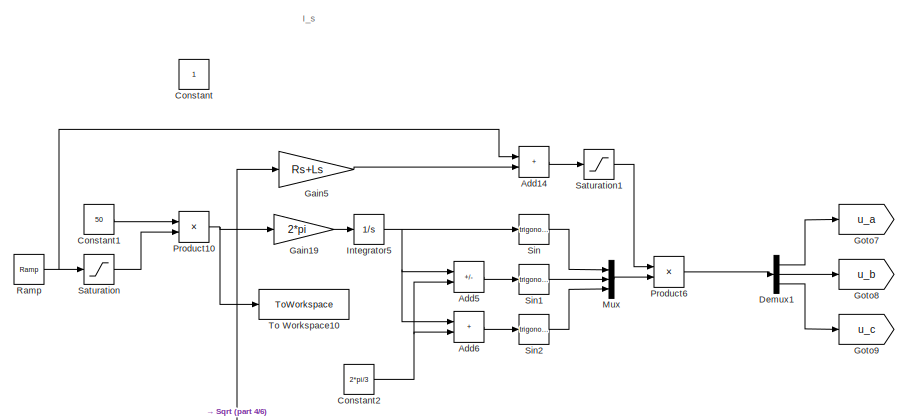
[diagram: root canvas - part 1/6, top left region]
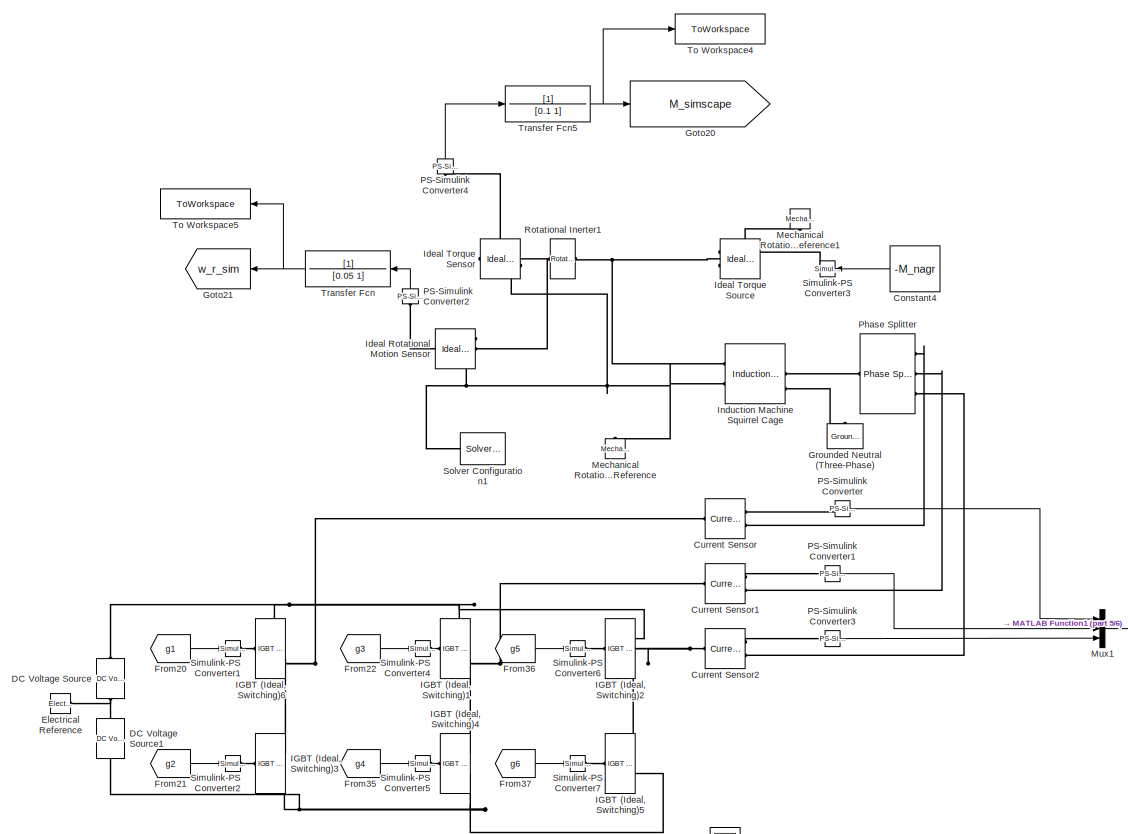
[diagram: root canvas - part 2/6, central region]
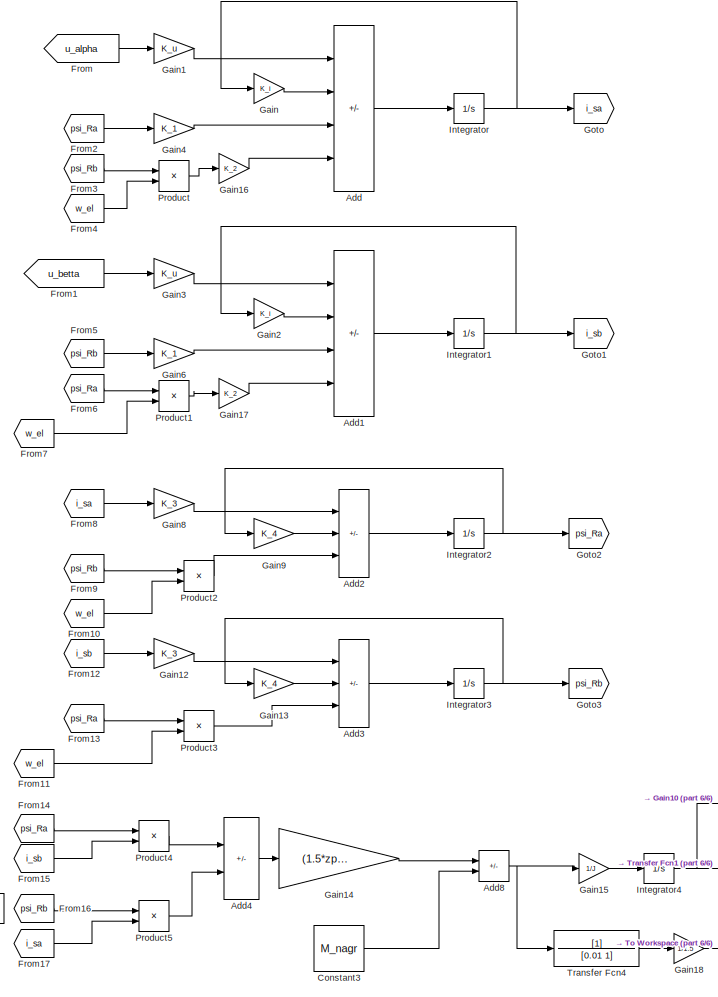
[diagram: root canvas - part 3/6, central region]
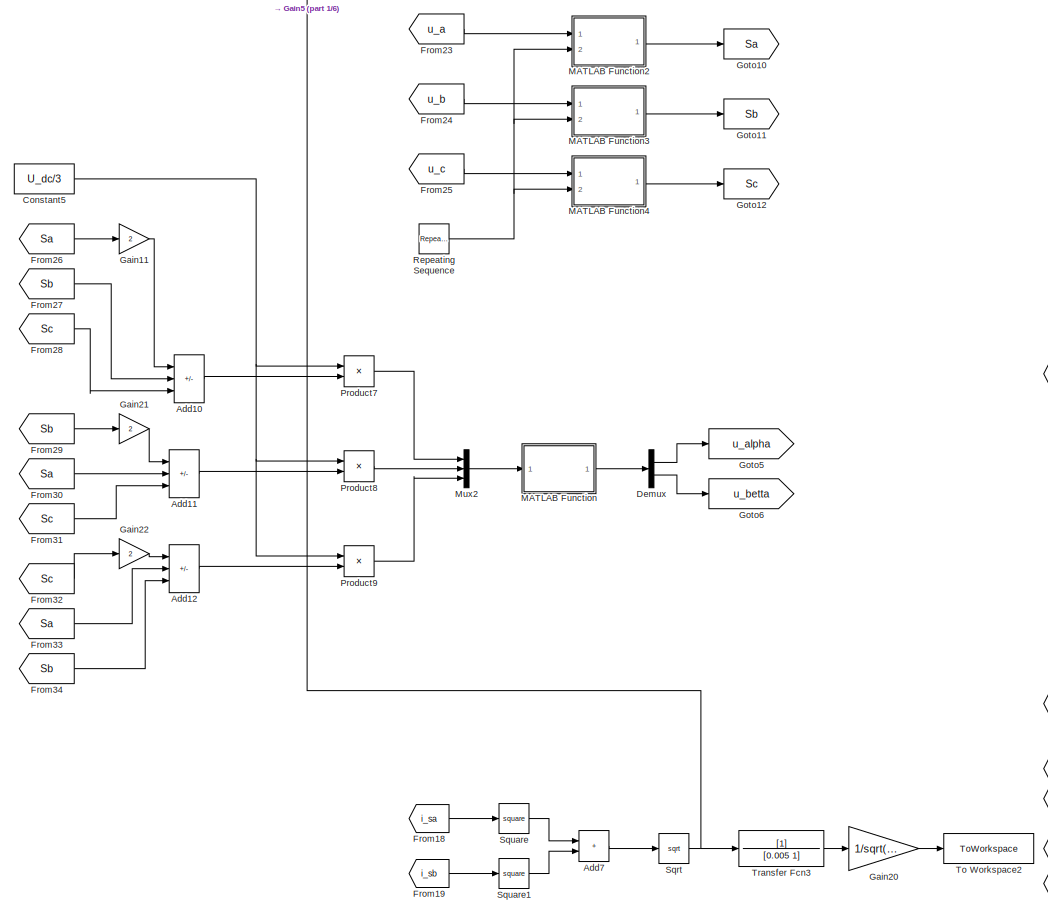
[diagram: root canvas - part 4/6, middle left region]
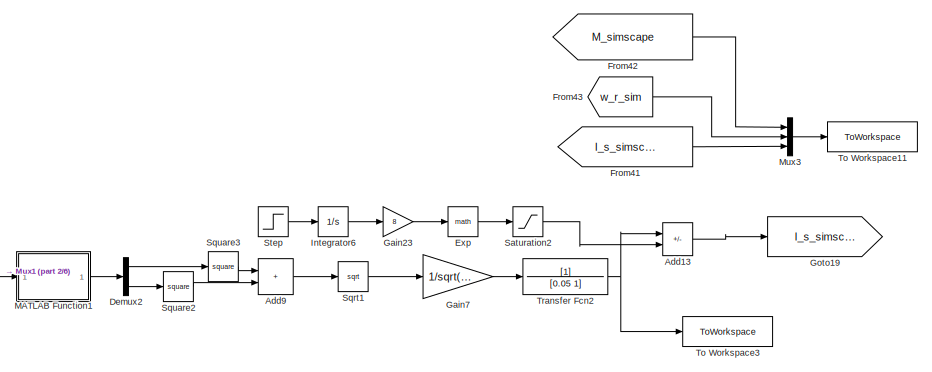
[diagram: root canvas - part 5/6, middle right region]
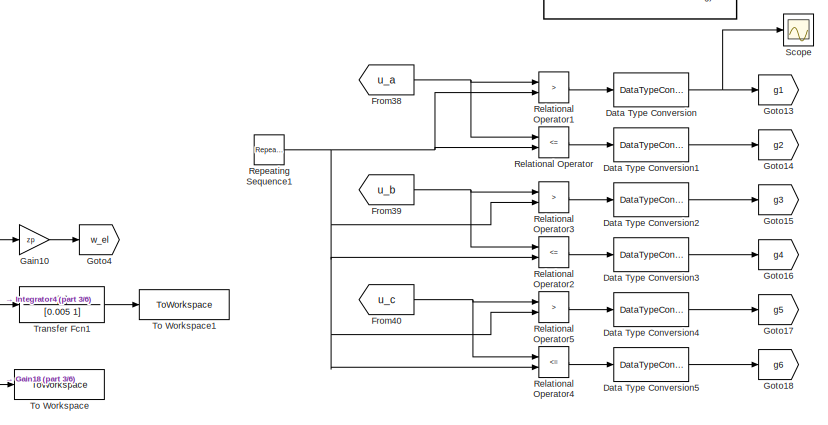
[diagram: root canvas - part 6/6, bottom center region]
MODEL slx_23dcf871ef6f
KIND model
CONFIG AbsTol = auto
CONFIG EnableMultiTasking = off
CONFIG FixedStep = auto
CONFIG MaxStep = auto
CONFIG MinStep = auto
CONFIG RelTol = 1e-3
CONFIG SampleTimeConstraint = Unconstrained
CONFIG SolverName = VariableStepAuto
CONFIG StartTime = 0.0
CONFIG StopTime = 10.0
BLOCK [Sum] Add
  IconShape = rectangular
  Inputs = +-++
  Ports = [4, 1]
BLOCK [Sum] Add1
  IconShape = rectangular
  Inputs = +-+-
  Ports = [4, 1]
BLOCK [Sum] Add10
  IconShape = rectangular
  Inputs = +--
  Ports = [3, 1]
BLOCK [Sum] Add11
  IconShape = rectangular
  Inputs = +--
  Ports = [3, 1]
BLOCK [Sum] Add12
  IconShape = rectangular
  Inputs = +--
  Ports = [3, 1]
BLOCK [Sum] Add13
  IconShape = rectangular
  Inputs = +-
  Ports = [2, 1]
BLOCK [Sum] Add14
  IconShape = rectangular
  Ports = [2, 1]
BLOCK [Sum] Add2
  IconShape = rectangular
  Inputs = +--
  Ports = [3, 1]
BLOCK [Sum] Add3
  IconShape = rectangular
  Inputs = +-+
  Ports = [3, 1]
BLOCK [Sum] Add4
  IconShape = rectangular
  Inputs = +-
  Ports = [2, 1]
BLOCK [Sum] Add5
  IconShape = rectangular
  Inputs = +-
  Ports = [2, 1]
BLOCK [Sum] Add6
  IconShape = rectangular
  Ports = [2, 1]
BLOCK [Sum] Add7
  IconShape = rectangular
  Ports = [2, 1]
BLOCK [Sum] Add8
  IconShape = rectangular
  Inputs = +-
  Ports = [2, 1]
BLOCK [Sum] Add9
  IconShape = rectangular
  Ports = [2, 1]
BLOCK [Constant] Constant
BLOCK [Constant] Constant1
  Value = 50
BLOCK [Constant] Constant2
  Value = 2*pi/3
BLOCK [Constant] Constant3
  Value = M_nagr
BLOCK [Constant] Constant4
  NameLocation = top
  Value = -M_nagr
BLOCK [Constant] Constant5
  Value = U_dc/3
BLOCK [Reference] Current Sensor  REF=fl_lib/Electrical/Electrical Sensors/Current Sensor
  Ports = [0, 0, 0, 0, 0, 1, 2]
  SourceBlock = fl_lib/Electrical/Electrical Sensors/Current Sensor
  SourceProductBaseCode = PW,SS,VE
  SourceType = Current Sensor
BLOCK [Reference] Current Sensor1  REF=fl_lib/Electrical/Electrical Sensors/Current Sensor
  Ports = [0, 0, 0, 0, 0, 1, 2]
  SourceBlock = fl_lib/Electrical/Electrical Sensors/Current Sensor
  SourceProductBaseCode = PW,SS,VE
  SourceType = Current Sensor
BLOCK [Reference] Current Sensor2  REF=fl_lib/Electrical/Electrical Sensors/Current Sensor
  Ports = [0, 0, 0, 0, 0, 1, 2]
  SourceBlock = fl_lib/Electrical/Electrical Sensors/Current Sensor
  SourceProductBaseCode = PW,SS,VE
  SourceType = Current Sensor
BLOCK [Reference] DC Voltage Source  REF=fl_lib/Electrical/Electrical Sources/DC Voltage Source
  NameLocation = right
  Ports = [0, 0, 0, 0, 0, 1, 1]
  SourceBlock = fl_lib/Electrical/Electrical Sources/DC Voltage Source
  SourceProductBaseCode = PW,SS,VE
  SourceType = DC Voltage Source
BLOCK [Reference] DC Voltage Source1  REF=fl_lib/Electrical/Electrical Sources/DC Voltage Source
  NameLocation = right
  Ports = [0, 0, 0, 0, 0, 1, 1]
  SourceBlock = fl_lib/Electrical/Electrical Sources/DC Voltage Source
  SourceProductBaseCode = PW,SS,VE
  SourceType = DC Voltage Source
BLOCK [DataTypeConversion] Data Type Conversion
  RndMeth = Floor
  SaturateOnIntegerOverflow = off
BLOCK [DataTypeConversion] Data Type Conversion1
  RndMeth = Floor
  SaturateOnIntegerOverflow = off
BLOCK [DataTypeConversion] Data Type Conversion2
  RndMeth = Floor
  SaturateOnIntegerOverflow = off
BLOCK [DataTypeConversion] Data Type Conversion3
  RndMeth = Floor
  SaturateOnIntegerOverflow = off
BLOCK [DataTypeConversion] Data Type Conversion4
  RndMeth = Floor
  SaturateOnIntegerOverflow = off
BLOCK [DataTypeConversion] Data Type Conversion5
  RndMeth = Floor
  SaturateOnIntegerOverflow = off
BLOCK [Demux] Demux
  Outputs = 2
  Ports = [1, 2]
BLOCK [Demux] Demux1
  Outputs = 3
  Ports = [1, 3]
BLOCK [Demux] Demux2
  Outputs = 2
  Ports = [1, 2]
BLOCK [Reference] Electrical Reference  REF=fl_lib/Electrical/Electrical Elements/Electrical Reference
  Ports = [0, 0, 0, 0, 0, 1]
  SourceBlock = fl_lib/Electrical/Electrical Elements/Electrical Reference
  SourceProductBaseCode = PW,SS,VE
  SourceType = Electrical Reference
BLOCK [Math] Exp
  Ports = [1, 1]
BLOCK [From] From
  GotoTag = u_alpha
BLOCK [From] From1
  GotoTag = u_betta
BLOCK [From] From10
  GotoTag = w_el
BLOCK [From] From11
  GotoTag = w_el
BLOCK [From] From12
  GotoTag = i_sb
BLOCK [From] From13
  GotoTag = psi_Ra
BLOCK [From] From14
  GotoTag = psi_Ra
BLOCK [From] From15
  GotoTag = i_sb
BLOCK [From] From16
  GotoTag = psi_Rb
BLOCK [From] From17
  GotoTag = i_sa
BLOCK [From] From18
  GotoTag = i_sa
BLOCK [From] From19
  GotoTag = i_sb
BLOCK [From] From2
  GotoTag = psi_Ra
BLOCK [From] From20
  GotoTag = g1
BLOCK [From] From21
  GotoTag = g2
BLOCK [From] From22
  GotoTag = g3
BLOCK [From] From23
  GotoTag = u_a
BLOCK [From] From24
  GotoTag = u_b
BLOCK [From] From25
  GotoTag = u_c
BLOCK [From] From26
  GotoTag = Sa
BLOCK [From] From27
  GotoTag = Sb
BLOCK [From] From28
  GotoTag = Sc
BLOCK [From] From29
  GotoTag = Sb
BLOCK [From] From3
  GotoTag = psi_Rb
BLOCK [From] From30
  GotoTag = Sa
BLOCK [From] From31
  GotoTag = Sc
BLOCK [From] From32
  GotoTag = Sc
BLOCK [From] From33
  GotoTag = Sa
BLOCK [From] From34
  GotoTag = Sb
BLOCK [From] From35
  GotoTag = g4
BLOCK [From] From36
  GotoTag = g5
BLOCK [From] From37
  GotoTag = g6
BLOCK [From] From38
  GotoTag = u_a
BLOCK [From] From39
  GotoTag = u_b
BLOCK [From] From4
  GotoTag = w_el
BLOCK [From] From40
  GotoTag = u_c
BLOCK [From] From41
  GotoTag = I_s_simscape
BLOCK [From] From42
  GotoTag = M_simscape
BLOCK [From] From43
  GotoTag = w_r_sim
  NameLocation = top
BLOCK [From] From5
  GotoTag = psi_Rb
BLOCK [From] From6
  GotoTag = psi_Ra
BLOCK [From] From7
  GotoTag = w_el
BLOCK [From] From8
  GotoTag = i_sa
BLOCK [From] From9
  GotoTag = psi_Rb
BLOCK [Gain] Gain
  Gain = K_i
BLOCK [Gain] Gain1
  Gain = K_u
BLOCK [Gain] Gain10
  Gain = zp
BLOCK [Gain] Gain11
  Gain = 2
BLOCK [Gain] Gain12
  Gain = K_3
BLOCK [Gain] Gain13
  Gain = K_4
BLOCK [Gain] Gain14
  Gain = (1.5*zp*Lm)/Lr
BLOCK [Gain] Gain15
  Gain = 1/J
BLOCK [Gain] Gain16
  Gain = K_2
BLOCK [Gain] Gain17
  Gain = K_2
BLOCK [Gain] Gain18
  Gain = 1/1.5
BLOCK [Gain] Gain19
  Gain = 2*pi
BLOCK [Gain] Gain2
  Gain = K_i
BLOCK [Gain] Gain20
  Gain = 1/sqrt(2)
BLOCK [Gain] Gain21
  Gain = 2
BLOCK [Gain] Gain22
  Gain = 2
BLOCK [Gain] Gain23
  Gain = 8
BLOCK [Gain] Gain3
  Gain = K_u
BLOCK [Gain] Gain4
  Gain = K_1
BLOCK [Gain] Gain5
  Gain = Rs+Ls
BLOCK [Gain] Gain6
  Gain = K_1
BLOCK [Gain] Gain7
  Gain = 1/sqrt(2)
BLOCK [Gain] Gain8
  Gain = K_3
BLOCK [Gain] Gain9
  Gain = K_4
BLOCK [Goto] Goto
  GotoTag = i_sa
BLOCK [Goto] Goto1
  GotoTag = i_sb
BLOCK [Goto] Goto10
  GotoTag = Sa
BLOCK [Goto] Goto11
  GotoTag = Sb
BLOCK [Goto] Goto12
  GotoTag = Sc
BLOCK [Goto] Goto13
  GotoTag = g1
BLOCK [Goto] Goto14
  GotoTag = g2
BLOCK [Goto] Goto15
  GotoTag = g3
BLOCK [Goto] Goto16
  GotoTag = g4
BLOCK [Goto] Goto17
  GotoTag = g5
BLOCK [Goto] Goto18
  GotoTag = g6
BLOCK [Goto] Goto19
  GotoTag = I_s_simscape
BLOCK [Goto] Goto2
  GotoTag = psi_Ra
BLOCK [Goto] Goto20
  GotoTag = M_simscape
BLOCK [Goto] Goto21
  GotoTag = w_r_sim
  NameLocation = top
BLOCK [Goto] Goto3
  GotoTag = psi_Rb
BLOCK [Goto] Goto4
  GotoTag = w_el
BLOCK [Goto] Goto5
  GotoTag = u_alpha
BLOCK [Goto] Goto6
  GotoTag = u_betta
BLOCK [Goto] Goto7
  GotoTag = u_a
BLOCK [Goto] Goto8
  GotoTag = u_b
BLOCK [Goto] Goto9
  GotoTag = u_c
BLOCK [Reference] Grounded Neutral (Three-Phase)  REF=ee_lib/Connectors &
References/Grounded Neutral
(Three-Phase)
  NameLocation = right
  Ports = [0, 0, 0, 0, 0, 1]
  SourceBlock = ee_lib/Connectors &\nReferences/Grounded Neutral\n(Three-Phase)
  SourceProductBaseCode = PS
  SourceType = Grounded Neutral\n(Three-Phase)
BLOCK [Reference] IGBT (Ideal, Switching)1  REF=ee_lib/Semiconductors &
Converters/IGBT
(Ideal,
Switching)
  Ports = [0, 0, 0, 0, 0, 1, 2]
  SourceBlock = ee_lib/Semiconductors &\nConverters/IGBT\n(Ideal,\nSwitching)
  SourceProductBaseCode = PS
  SourceType = IGBT\n(Ideal,\nSwitching)
BLOCK [Reference] IGBT (Ideal, Switching)2  REF=ee_lib/Semiconductors &
Converters/IGBT
(Ideal,
Switching)
  Ports = [0, 0, 0, 0, 0, 1, 2]
  SourceBlock = ee_lib/Semiconductors &\nConverters/IGBT\n(Ideal,\nSwitching)
  SourceProductBaseCode = PS
  SourceType = IGBT\n(Ideal,\nSwitching)
BLOCK [Reference] IGBT (Ideal, Switching)3  REF=ee_lib/Semiconductors &
Converters/IGBT
(Ideal,
Switching)
  Ports = [0, 0, 0, 0, 0, 1, 2]
  SourceBlock = ee_lib/Semiconductors &\nConverters/IGBT\n(Ideal,\nSwitching)
  SourceProductBaseCode = PS
  SourceType = IGBT\n(Ideal,\nSwitching)
BLOCK [Reference] IGBT (Ideal, Switching)4  REF=ee_lib/Semiconductors &
Converters/IGBT
(Ideal,
Switching)
  Ports = [0, 0, 0, 0, 0, 1, 2]
  SourceBlock = ee_lib/Semiconductors &\nConverters/IGBT\n(Ideal,\nSwitching)
  SourceProductBaseCode = PS
  SourceType = IGBT\n(Ideal,\nSwitching)
BLOCK [Reference] IGBT (Ideal, Switching)5  REF=ee_lib/Semiconductors &
Converters/IGBT
(Ideal,
Switching)
  Ports = [0, 0, 0, 0, 0, 1, 2]
  SourceBlock = ee_lib/Semiconductors &\nConverters/IGBT\n(Ideal,\nSwitching)
  SourceProductBaseCode = PS
  SourceType = IGBT\n(Ideal,\nSwitching)
BLOCK [Reference] IGBT (Ideal, Switching)6  REF=ee_lib/Semiconductors &
Converters/IGBT
(Ideal,
Switching)
  Ports = [0, 0, 0, 0, 0, 1, 2]
  SourceBlock = ee_lib/Semiconductors &\nConverters/IGBT\n(Ideal,\nSwitching)
  SourceProductBaseCode = PS
  SourceType = IGBT\n(Ideal,\nSwitching)
BLOCK [Reference] Ideal Rotational Motion Sensor  REF=fl_lib/Mechanical/Mechanical Sensors/Ideal Rotational
Motion Sensor
  NameLocation = top
  Ports = [0, 0, 0, 0, 0, 1, 3]
  SourceBlock = fl_lib/Mechanical/Mechanical Sensors/Ideal Rotational\nMotion Sensor
  SourceProductBaseCode = PW,SS,VE
  SourceType = Ideal Rotational\nMotion Sensor
BLOCK [Reference] Ideal Torque Sensor  REF=fl_lib/Mechanical/Mechanical Sensors/Ideal Torque Sensor
  NameLocation = top
  Ports = [0, 0, 0, 0, 0, 1, 2]
  SourceBlock = fl_lib/Mechanical/Mechanical Sensors/Ideal Torque Sensor
  SourceProductBaseCode = PW,SS,VE
  SourceType = Ideal Torque Sensor
BLOCK [Reference] Ideal Torque Source  REF=fl_lib/Mechanical/Mechanical Sources/Ideal Torque Source
  NameLocation = top
  Ports = [0, 0, 0, 0, 0, 1, 2]
  SourceBlock = fl_lib/Mechanical/Mechanical Sources/Ideal Torque Source
  SourceProductBaseCode = PW,SS,VE
  SourceType = Ideal Torque Source
BLOCK [Reference] Induction Machine Squirrel Cage  REF=ee_lib/Electromechanical/Asynchronous/Induction Machine
Squirrel Cage
  Ports = [0, 0, 0, 0, 0, 2, 3]
  SourceBlock = ee_lib/Electromechanical/Asynchronous/Induction Machine\nSquirrel Cage
  SourceProductBaseCode = PS
  SourceType = Induction Machine\nSquirrel Cage
BLOCK [Integrator] Integrator
  Ports = [1, 1]
BLOCK [Integrator] Integrator1
  Ports = [1, 1]
BLOCK [Integrator] Integrator2
  Ports = [1, 1]
BLOCK [Integrator] Integrator3
  Ports = [1, 1]
BLOCK [Integrator] Integrator4
  Ports = [1, 1]
BLOCK [Integrator] Integrator5
  Ports = [1, 1]
BLOCK [Integrator] Integrator6
  Ports = [1, 1]
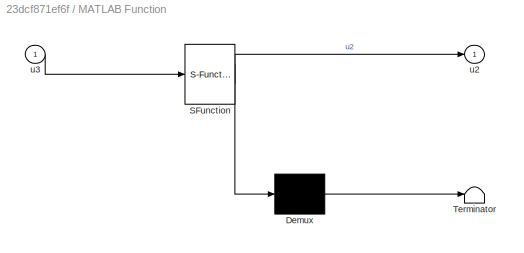
BLOCK [SubSystem] MATLAB Function
  ErrorFcn = Stateflow.Translate.translate
  PermitHierarchicalResolution = ExplicitOnly
  Ports = [1, 1]
  RequestExecContextInheritance = off
  SFBlockType = MATLAB Function
  SystemSampleTime = 1e-6
  TreatAsAtomicUnit = on
BLOCK [Demux] MATLAB Function/ Demux 
  Outputs = 1
  Ports = [1, 1]
BLOCK [S-Function] MATLAB Function/ SFunction 
  EnableBusSupport = on
  FunctionName = sf_sfun
  PortCounts = [1 2]
  Ports = [1, 2]
  SFcnIsStateOwnerBlock = off
  SFunctionDeploymentMode = off
  Tag = Stateflow S-Function 2
BLOCK [Terminator] MATLAB Function/ Terminator 
BLOCK [Outport] MATLAB Function/u2
BLOCK [Inport] MATLAB Function/u3
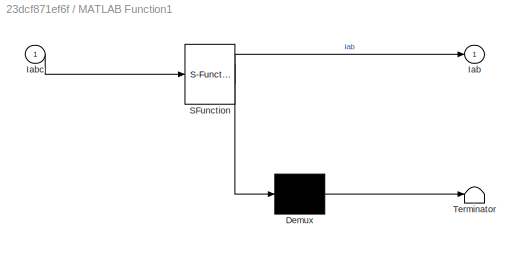
BLOCK [SubSystem] MATLAB Function1
  ErrorFcn = Stateflow.Translate.translate
  PermitHierarchicalResolution = ExplicitOnly
  Ports = [1, 1]
  RequestExecContextInheritance = off
  SFBlockType = MATLAB Function
  SystemSampleTime = 1e-6
  TreatAsAtomicUnit = on
BLOCK [Demux] MATLAB Function1/ Demux 
  Outputs = 1
  Ports = [1, 1]
BLOCK [S-Function] MATLAB Function1/ SFunction 
  EnableBusSupport = on
  FunctionName = sf_sfun
  PortCounts = [1 2]
  Ports = [1, 2]
  SFcnIsStateOwnerBlock = off
  SFunctionDeploymentMode = off
  Tag = Stateflow S-Function 1
BLOCK [Terminator] MATLAB Function1/ Terminator 
BLOCK [Outport] MATLAB Function1/Iab
BLOCK [Inport] MATLAB Function1/Iabc
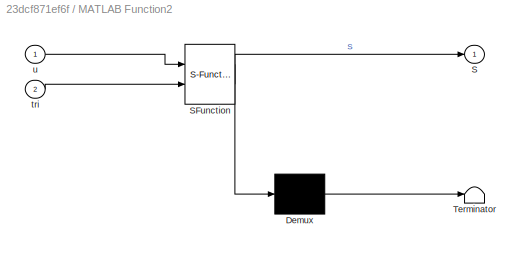
BLOCK [SubSystem] MATLAB Function2
  ErrorFcn = Stateflow.Translate.translate
  PermitHierarchicalResolution = ExplicitOnly
  Ports = [2, 1]
  RequestExecContextInheritance = off
  SFBlockType = MATLAB Function
  SystemSampleTime = 1e-6
  TreatAsAtomicUnit = on
BLOCK [Demux] MATLAB Function2/ Demux 
  Outputs = 1
  Ports = [1, 1]
BLOCK [S-Function] MATLAB Function2/ SFunction 
  EnableBusSupport = on
  FunctionName = sf_sfun
  PortCounts = [2 2]
  Ports = [2, 2]
  SFcnIsStateOwnerBlock = off
  SFunctionDeploymentMode = off
  Tag = Stateflow S-Function 3
BLOCK [Terminator] MATLAB Function2/ Terminator 
BLOCK [Outport] MATLAB Function2/S
BLOCK [Inport] MATLAB Function2/tri
  Port = 2
BLOCK [Inport] MATLAB Function2/u
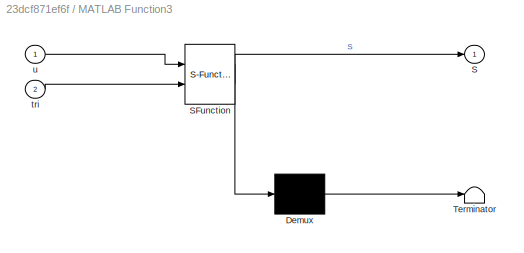
BLOCK [SubSystem] MATLAB Function3
  ErrorFcn = Stateflow.Translate.translate
  PermitHierarchicalResolution = ExplicitOnly
  Ports = [2, 1]
  RequestExecContextInheritance = off
  SFBlockType = MATLAB Function
  SystemSampleTime = 1e-6
  TreatAsAtomicUnit = on
BLOCK [Demux] MATLAB Function3/ Demux 
  Outputs = 1
  Ports = [1, 1]
BLOCK [S-Function] MATLAB Function3/ SFunction 
  EnableBusSupport = on
  FunctionName = sf_sfun
  PortCounts = [2 2]
  Ports = [2, 2]
  SFcnIsStateOwnerBlock = off
  SFunctionDeploymentMode = off
  Tag = Stateflow S-Function 4
BLOCK [Terminator] MATLAB Function3/ Terminator 
BLOCK [Outport] MATLAB Function3/S
BLOCK [Inport] MATLAB Function3/tri
  Port = 2
BLOCK [Inport] MATLAB Function3/u
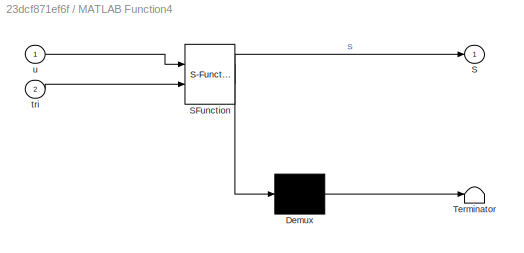
BLOCK [SubSystem] MATLAB Function4
  ErrorFcn = Stateflow.Translate.translate
  PermitHierarchicalResolution = ExplicitOnly
  Ports = [2, 1]
  RequestExecContextInheritance = off
  SFBlockType = MATLAB Function
  SystemSampleTime = 1e-6
  TreatAsAtomicUnit = on
BLOCK [Demux] MATLAB Function4/ Demux 
  Outputs = 1
  Ports = [1, 1]
BLOCK [S-Function] MATLAB Function4/ SFunction 
  EnableBusSupport = on
  FunctionName = sf_sfun
  PortCounts = [2 2]
  Ports = [2, 2]
  SFcnIsStateOwnerBlock = off
  SFunctionDeploymentMode = off
  Tag = Stateflow S-Function 5
BLOCK [Terminator] MATLAB Function4/ Terminator 
BLOCK [Outport] MATLAB Function4/S
BLOCK [Inport] MATLAB Function4/tri
  Port = 2
BLOCK [Inport] MATLAB Function4/u
BLOCK [Reference] Mechanical Rotational Reference  REF=fl_lib/Mechanical/Rotational Elements/Mechanical
Rotational Reference
  NameLocation = right
  Ports = [0, 0, 0, 0, 0, 1]
  SourceBlock = fl_lib/Mechanical/Rotational Elements/Mechanical\nRotational Reference
  SourceProductBaseCode = PW,SS,VE
  SourceType = Mechanical\nRotational Reference
BLOCK [Reference] Mechanical Rotational Reference1  REF=fl_lib/Mechanical/Rotational Elements/Mechanical
Rotational Reference
  NameLocation = left
  Ports = [0, 0, 0, 0, 0, 1]
  SourceBlock = fl_lib/Mechanical/Rotational Elements/Mechanical\nRotational Reference
  SourceProductBaseCode = PW,SS,VE
  SourceType = Mechanical\nRotational Reference
BLOCK [Mux] Mux
  DisplayOption = bar
  Inputs = 3
  Ports = [3, 1]
BLOCK [Mux] Mux1
  DisplayOption = bar
  Inputs = 3
  Ports = [3, 1]
BLOCK [Mux] Mux2
  DisplayOption = bar
  Inputs = 3
  Ports = [3, 1]
BLOCK [Mux] Mux3
  DisplayOption = bar
  Inputs = 3
  Ports = [3, 1]
BLOCK [Reference] PS-Simulink Converter  REF=nesl_utility/PS-Simulink
Converter
  Ports = [0, 1, 0, 0, 0, 1]
  SourceBlock = nesl_utility/PS-Simulink\nConverter
  SourceProductBaseCode = SS,PW,VE
  SourceType = PS-Simulink\nConverter
BLOCK [Reference] PS-Simulink Converter1  REF=nesl_utility/PS-Simulink
Converter
  Ports = [0, 1, 0, 0, 0, 1]
  SourceBlock = nesl_utility/PS-Simulink\nConverter
  SourceProductBaseCode = SS,PW,VE
  SourceType = PS-Simulink\nConverter
BLOCK [Reference] PS-Simulink Converter2  REF=nesl_utility/PS-Simulink
Converter
  NameLocation = right
  Ports = [0, 1, 0, 0, 0, 1]
  SourceBlock = nesl_utility/PS-Simulink\nConverter
  SourceProductBaseCode = SS,PW,VE
  SourceType = PS-Simulink\nConverter
BLOCK [Reference] PS-Simulink Converter3  REF=nesl_utility/PS-Simulink
Converter
  Ports = [0, 1, 0, 0, 0, 1]
  SourceBlock = nesl_utility/PS-Simulink\nConverter
  SourceProductBaseCode = SS,PW,VE
  SourceType = PS-Simulink\nConverter
BLOCK [Reference] PS-Simulink Converter4  REF=nesl_utility/PS-Simulink
Converter
  NameLocation = right
  Ports = [0, 1, 0, 0, 0, 1]
  SourceBlock = nesl_utility/PS-Simulink\nConverter
  SourceProductBaseCode = SS,PW,VE
  SourceType = PS-Simulink\nConverter
BLOCK [Reference] Phase Splitter  REF=ee_lib/Connectors &
References/Phase Splitter
  Ports = [0, 0, 0, 0, 0, 1, 3]
  SourceBlock = ee_lib/Connectors &\nReferences/Phase Splitter
  SourceProductBaseCode = PS
  SourceType = Phase Splitter
BLOCK [Product] Product
  Ports = [2, 1]
BLOCK [Product] Product1
  Ports = [2, 1]
BLOCK [Product] Product10
  Ports = [2, 1]
BLOCK [Product] Product2
  Ports = [2, 1]
BLOCK [Product] Product3
  Ports = [2, 1]
BLOCK [Product] Product4
  Ports = [2, 1]
BLOCK [Product] Product5
  Ports = [2, 1]
BLOCK [Product] Product6
  Ports = [2, 1]
BLOCK [Product] Product7
  Ports = [2, 1]
BLOCK [Product] Product8
  Ports = [2, 1]
BLOCK [Product] Product9
  Ports = [2, 1]
BLOCK [Reference] Ramp  REF=simulink/Sources/Ramp
  Ports = [0, 1]
  SourceBlock = simulink/Sources/Ramp
  SourceProductBaseCode = SL
  SourceType = Ramp
BLOCK [RelationalOperator] Relational Operator
  InputSameDT = off
  Operator = <=
  OutDataTypeStr = boolean
  Ports = [2, 1]
  RndMeth = Simplest
BLOCK [RelationalOperator] Relational Operator1
  InputSameDT = off
  Operator = >
  OutDataTypeStr = boolean
  Ports = [2, 1]
  RndMeth = Simplest
BLOCK [RelationalOperator] Relational Operator2
  InputSameDT = off
  Operator = <=
  OutDataTypeStr = boolean
  Ports = [2, 1]
  RndMeth = Simplest
BLOCK [RelationalOperator] Relational Operator3
  InputSameDT = off
  Operator = >
  OutDataTypeStr = boolean
  Ports = [2, 1]
  RndMeth = Simplest
BLOCK [RelationalOperator] Relational Operator4
  InputSameDT = off
  Operator = <=
  OutDataTypeStr = boolean
  Ports = [2, 1]
  RndMeth = Simplest
BLOCK [RelationalOperator] Relational Operator5
  InputSameDT = off
  Operator = >
  OutDataTypeStr = boolean
  Ports = [2, 1]
  RndMeth = Simplest
BLOCK [Reference] Repeating Sequence  REF=simulink/Sources/Repeating
Sequence
  Ports = [0, 1]
  SourceBlock = simulink/Sources/Repeating\nSequence
  SourceProductBaseCode = SL
  SourceType = Repeating table
BLOCK [Reference] Repeating Sequence1  REF=simulink/Sources/Repeating
Sequence
  Ports = [0, 1]
  SourceBlock = simulink/Sources/Repeating\nSequence
  SourceProductBaseCode = SL
  SourceType = Repeating table
BLOCK [Reference] Rotational Inerter1  REF=fl_lib/Mechanical/Rotational Elements/Rotational Inerter
  NameLocation = top
  Ports = [0, 0, 0, 0, 0, 1, 1]
  SourceBlock = fl_lib/Mechanical/Rotational Elements/Rotational Inerter
  SourceProductBaseCode = PW,SS,VE
  SourceType = Rotational Inerter
BLOCK [Saturate] Saturation
  LowerLimit = 0
  UpperLimit = 1
BLOCK [Saturate] Saturation1
  LowerLimit = 0
  UpperLimit = 1
BLOCK [Saturate] Saturation2
  LowerLimit = 0
  UpperLimit = 2.9
BLOCK [Scope] Scope
  Floating = off
  NumInputPorts = 1
  Ports = [1]
  ScopeSpecificationString = Simulink.scopes.TimeScopeBlockCfg('CurrentConfiguration', extmgr.ConfigurationSet(extmgr.Configuration('Core','General UI',true),extmgr.Configuration('Core','Source UI',true),extmgr.Configuration('Sources','WiredSimulink',true),extmgr.Configuration('Visuals','Time Domain',true,'SerializedDisplays',{struct('MinYLimReal','-0.125','MaxYLimReal','1.125','YLabelReal','','MinYLimMag','0.00000','MaxYLimM...<+1328ch>
BLOCK [Reference] Simulink-PS Converter1  REF=nesl_utility/Simulink-PS
Converter
  Ports = [1, 0, 0, 0, 0, 0, 1]
  SourceBlock = nesl_utility/Simulink-PS\nConverter
  SourceProductBaseCode = SS,PW,VE
  SourceType = Simulink-PS\nConverter
BLOCK [Reference] Simulink-PS Converter2  REF=nesl_utility/Simulink-PS
Converter
  Ports = [1, 0, 0, 0, 0, 0, 1]
  SourceBlock = nesl_utility/Simulink-PS\nConverter
  SourceProductBaseCode = SS,PW,VE
  SourceType = Simulink-PS\nConverter
BLOCK [Reference] Simulink-PS Converter3  REF=nesl_utility/Simulink-PS
Converter
  NameLocation = top
  Ports = [1, 0, 0, 0, 0, 0, 1]
  SourceBlock = nesl_utility/Simulink-PS\nConverter
  SourceProductBaseCode = SS,PW,VE
  SourceType = Simulink-PS\nConverter
BLOCK [Reference] Simulink-PS Converter4  REF=nesl_utility/Simulink-PS
Converter
  Ports = [1, 0, 0, 0, 0, 0, 1]
  SourceBlock = nesl_utility/Simulink-PS\nConverter
  SourceProductBaseCode = SS,PW,VE
  SourceType = Simulink-PS\nConverter
BLOCK [Reference] Simulink-PS Converter5  REF=nesl_utility/Simulink-PS
Converter
  Ports = [1, 0, 0, 0, 0, 0, 1]
  SourceBlock = nesl_utility/Simulink-PS\nConverter
  SourceProductBaseCode = SS,PW,VE
  SourceType = Simulink-PS\nConverter
BLOCK [Reference] Simulink-PS Converter6  REF=nesl_utility/Simulink-PS
Converter
  Ports = [1, 0, 0, 0, 0, 0, 1]
  SourceBlock = nesl_utility/Simulink-PS\nConverter
  SourceProductBaseCode = SS,PW,VE
  SourceType = Simulink-PS\nConverter
BLOCK [Reference] Simulink-PS Converter7  REF=nesl_utility/Simulink-PS
Converter
  Ports = [1, 0, 0, 0, 0, 0, 1]
  SourceBlock = nesl_utility/Simulink-PS\nConverter
  SourceProductBaseCode = SS,PW,VE
  SourceType = Simulink-PS\nConverter
BLOCK [Trigonometry] Sin
  Ports = [1, 1]
BLOCK [Trigonometry] Sin1
  Ports = [1, 1]
BLOCK [Trigonometry] Sin2
  Ports = [1, 1]
BLOCK [Reference] Solver Configuration1  REF=nesl_utility/Solver
Configuration
  NameLocation = top
  Ports = [0, 0, 0, 0, 0, 0, 1]
  SourceBlock = nesl_utility/Solver\nConfiguration
  SourceProductBaseCode = SS,PW,VE
  SourceType = Solver\nConfiguration
BLOCK [Sqrt] Sqrt
BLOCK [Sqrt] Sqrt1
BLOCK [Math] Square
  Operator = square
  Ports = [1, 1]
BLOCK [Math] Square1
  Operator = square
  Ports = [1, 1]
BLOCK [Math] Square2
  Operator = square
  Ports = [1, 1]
BLOCK [Math] Square3
  Operator = square
  Ports = [1, 1]
BLOCK [Step] Step
  SampleTime = 0
  Time = 0.1
BLOCK [ToWorkspace] To Workspace
  FixptAsFi = on
  MaxDataPoints = inf
  Ports = [1]
  SampleTime = -1
  SaveFormat = Timeseries
  VariableName = M
BLOCK [ToWorkspace] To Workspace1
  FixptAsFi = on
  MaxDataPoints = inf
  Ports = [1]
  SampleTime = -1
  SaveFormat = Timeseries
  VariableName = w
BLOCK [ToWorkspace] To Workspace10
  FixptAsFi = on
  MaxDataPoints = inf
  Ports = [1]
  SampleTime = -1
  SaveFormat = Timeseries
  VariableName = f
BLOCK [ToWorkspace] To Workspace11
  FixptAsFi = on
  MaxDataPoints = inf
  Ports = [1]
  SampleTime = -1
  VariableName = simscape
BLOCK [ToWorkspace] To Workspace2
  FixptAsFi = on
  MaxDataPoints = inf
  Ports = [1]
  SampleTime = -1
  SaveFormat = Timeseries
  VariableName = I_s
BLOCK [ToWorkspace] To Workspace3
  FixptAsFi = on
  MaxDataPoints = inf
  Ports = [1]
  SampleTime = -1
  SaveFormat = Timeseries
  VariableName = I_sim_time
BLOCK [ToWorkspace] To Workspace4
  FixptAsFi = on
  MaxDataPoints = inf
  Ports = [1]
  SampleTime = -1
  SaveFormat = Timeseries
  VariableName = M_sim_time
BLOCK [ToWorkspace] To Workspace5
  FixptAsFi = on
  MaxDataPoints = inf
  NameLocation = top
  Ports = [1]
  SampleTime = -1
  SaveFormat = Timeseries
  VariableName = w_sim_time
BLOCK [TransferFcn] Transfer Fcn
  Denominator = [0.05 1]
  NameLocation = top
BLOCK [TransferFcn] Transfer Fcn1
  Denominator = [0.005 1]
BLOCK [TransferFcn] Transfer Fcn2
  Denominator = [0.05 1]
BLOCK [TransferFcn] Transfer Fcn3
  Denominator = [0.005 1]
BLOCK [TransferFcn] Transfer Fcn4
  Denominator = [0.01 1]
BLOCK [TransferFcn] Transfer Fcn5
  Denominator = [0.1 1]
ANNOTATION (root): I_s
LINE Add10:1 -> Product7:2
LINE Add11:1 -> Product8:2
LINE Add12:1 -> Product9:2
LINE Add13:1 -> Goto19:1
LINE Add14:1 -> Saturation1:1
LINE Add1:1 -> Integrator1:1
LINE Add2:1 -> Integrator2:1
LINE Add3:1 -> Integrator3:1
LINE Add4:1 -> Gain14:1
LINE Add5:1 -> Sin1:1
LINE Add6:1 -> Sin2:1
LINE Add7:1 -> Sqrt:1
NET Add8:1 -> Gain15:1, Transfer Fcn4:1
LINE Add9:1 -> Sqrt1:1
LINE Add:1 -> Integrator:1
LINE Constant1:1 -> Product10:1
NET Constant2:1 -> Add5:2, Add6:2
LINE Constant3:1 -> Add8:2
LINE Constant4:1 -> Simulink-PS Converter3:1
NET Constant5:1 -> Product7:1, Product8:1, Product9:1
LINE Data Type Conversion1:1 -> Goto14:1
LINE Data Type Conversion2:1 -> Goto15:1
LINE Data Type Conversion3:1 -> Goto16:1
LINE Data Type Conversion4:1 -> Goto17:1
LINE Data Type Conversion5:1 -> Goto18:1
NET Data Type Conversion:1 -> Goto13:1, Scope:1
LINE Demux1:1 -> Goto7:1
LINE Demux1:2 -> Goto8:1
LINE Demux1:3 -> Goto9:1
LINE Demux2:1 -> Square3:1
LINE Demux2:2 -> Square2:1
LINE Demux:1 -> Goto5:1
LINE Demux:2 -> Goto6:1
LINE Exp:1 -> Saturation2:1
LINE From10:1 -> Product2:2
LINE From11:1 -> Product3:2
LINE From12:1 -> Gain12:1
LINE From13:1 -> Product3:1
LINE From14:1 -> Product4:1
LINE From15:1 -> Product4:2
LINE From16:1 -> Product5:1
LINE From17:1 -> Product5:2
LINE From18:1 -> Square:1
LINE From19:1 -> Square1:1
LINE From1:1 -> Gain3:1
LINE From20:1 -> Simulink-PS Converter1:1
LINE From21:1 -> Simulink-PS Converter2:1
LINE From22:1 -> Simulink-PS Converter4:1
LINE From23:1 -> MATLAB Function2:1
LINE From24:1 -> MATLAB Function3:1
LINE From25:1 -> MATLAB Function4:1
LINE From26:1 -> Gain11:1
LINE From27:1 -> Add10:2
LINE From28:1 -> Add10:3
LINE From29:1 -> Gain21:1
LINE From2:1 -> Gain4:1
LINE From30:1 -> Add11:2
LINE From31:1 -> Add11:3
LINE From32:1 -> Gain22:1
LINE From33:1 -> Add12:2
LINE From34:1 -> Add12:3
LINE From35:1 -> Simulink-PS Converter5:1
LINE From36:1 -> Simulink-PS Converter6:1
LINE From37:1 -> Simulink-PS Converter7:1
NET From38:1 -> Relational Operator1:1, Relational Operator:1
NET From39:1 -> Relational Operator2:1, Relational Operator3:1
LINE From3:1 -> Product:1
NET From40:1 -> Relational Operator4:1, Relational Operator5:1
LINE From41:1 -> Mux3:3
LINE From42:1 -> Mux3:1
LINE From43:1 -> Mux3:2
LINE From4:1 -> Product:2
LINE From5:1 -> Gain6:1
LINE From6:1 -> Product1:1
LINE From7:1 -> Product1:2
LINE From8:1 -> Gain8:1
LINE From9:1 -> Product2:1
LINE From:1 -> Gain1:1
LINE Gain10:1 -> Goto4:1
LINE Gain11:1 -> Add10:1
LINE Gain12:1 -> Add3:1
LINE Gain13:1 -> Add3:2
LINE Gain14:1 -> Add8:1
LINE Gain15:1 -> Integrator4:1
LINE Gain16:1 -> Add:4
LINE Gain17:1 -> Add1:4
LINE Gain18:1 -> To Workspace:1
LINE Gain19:1 -> Integrator5:1
LINE Gain1:1 -> Add:1
LINE Gain20:1 -> To Workspace2:1
LINE Gain21:1 -> Add11:1
LINE Gain22:1 -> Add12:1
LINE Gain23:1 -> Exp:1
LINE Gain2:1 -> Add1:2
LINE Gain3:1 -> Add1:1
LINE Gain4:1 -> Add:3
LINE Gain5:1 -> Add14:2
LINE Gain6:1 -> Add1:3
LINE Gain7:1 -> Transfer Fcn2:1
LINE Gain8:1 -> Add2:1
LINE Gain9:1 -> Add2:2
LINE Gain:1 -> Add:2
NET Integrator1:1 -> Gain2:1, Goto1:1
NET Integrator2:1 -> Gain9:1, Goto2:1
NET Integrator3:1 -> Gain13:1, Goto3:1
NET Integrator4:1 -> Gain10:1, Transfer Fcn1:1
NET Integrator5:1 -> Add5:1, Add6:1, Sin:1
LINE Integrator6:1 -> Gain23:1
NET Integrator:1 -> Gain:1, Goto:1
LINE MATLAB Function1:1 -> Demux2:1
LINE MATLAB Function2:1 -> Goto10:1
LINE MATLAB Function3:1 -> Goto11:1
LINE MATLAB Function4:1 -> Goto12:1
LINE MATLAB Function:1 -> Demux:1
LINE Mux1:1 -> MATLAB Function1:1
LINE Mux2:1 -> MATLAB Function:1
LINE Mux3:1 -> To Workspace11:1
LINE Mux:1 -> Product6:2
LINE PS-Simulink Converter1:1 -> Mux1:2
LINE PS-Simulink Converter2:1 -> Transfer Fcn:1
LINE PS-Simulink Converter3:1 -> Mux1:3
LINE PS-Simulink Converter4:1 -> Transfer Fcn5:1
LINE PS-Simulink Converter:1 -> Mux1:1
NET Product10:1 -> Gain19:1, To Workspace10:1
LINE Product1:1 -> Gain17:1
LINE Product2:1 -> Add2:3
LINE Product3:1 -> Add3:3
LINE Product4:1 -> Add4:1
LINE Product5:1 -> Add4:2
LINE Product6:1 -> Demux1:1
LINE Product7:1 -> Mux2:1
LINE Product8:1 -> Mux2:2
LINE Product9:1 -> Mux2:3
LINE Product:1 -> Gain16:1
NET Ramp:1 -> Add14:1, Saturation:1
LINE Relational Operator1:1 -> Data Type Conversion:1
LINE Relational Operator2:1 -> Data Type Conversion3:1
LINE Relational Operator3:1 -> Data Type Conversion2:1
LINE Relational Operator4:1 -> Data Type Conversion5:1
LINE Relational Operator5:1 -> Data Type Conversion4:1
LINE Relational Operator:1 -> Data Type Conversion1:1
NET Repeating Sequence1:1 -> Relational Operator1:2, Relational Operator2:2, Relational Operator3:2, Relational Operator4:2, Relational Operator5:2, Relational Operator:2
NET Repeating Sequence:1 -> MATLAB Function2:2, MATLAB Function3:2, MATLAB Function4:2
LINE Saturation1:1 -> Product6:1
LINE Saturation2:1 -> Add13:2
LINE Saturation:1 -> Product10:2
LINE Sin1:1 -> Mux:2
LINE Sin2:1 -> Mux:3
LINE Sin:1 -> Mux:1
LINE Sqrt1:1 -> Gain7:1
NET Sqrt:1 -> Gain5:1, Transfer Fcn3:1
LINE Square1:1 -> Add7:2
LINE Square2:1 -> Add9:2
LINE Square3:1 -> Add9:1
LINE Square:1 -> Add7:1
LINE Step:1 -> Integrator6:1
LINE Transfer Fcn1:1 -> To Workspace1:1
NET Transfer Fcn2:1 -> Add13:1, To Workspace3:1
LINE Transfer Fcn3:1 -> Gain20:1
LINE Transfer Fcn4:1 -> Gain18:1
NET Transfer Fcn5:1 -> Goto20:1, To Workspace4:1
NET Transfer Fcn:1 -> Goto21:1, To Workspace5:1
PNET net1: Current Sensor1:LConn1 -- IGBT (Ideal, Switching)1:RConn2 -- IGBT (Ideal, Switching)4:RConn1
PLINE Current Sensor1:RConn1 -- PS-Simulink Converter1:LConn1
PLINE Current Sensor1:RConn2 -- Phase Splitter:RConn2
PNET net2: Current Sensor2:LConn1 -- IGBT (Ideal, Switching)2:RConn2 -- IGBT (Ideal, Switching)5:RConn1
PLINE Current Sensor2:RConn1 -- PS-Simulink Converter3:LConn1
PLINE Current Sensor2:RConn2 -- Phase Splitter:RConn3
PNET net3: Current Sensor:LConn1 -- IGBT (Ideal, Switching)3:RConn1 -- IGBT (Ideal, Switching)6:RConn2
PLINE Current Sensor:RConn1 -- PS-Simulink Converter:LConn1
PLINE Current Sensor:RConn2 -- Phase Splitter:RConn1
PNET net4: DC Voltage Source1:LConn1 -- DC Voltage Source:RConn1 -- Electrical Reference:LConn1
PNET net5: DC Voltage Source1:RConn1 -- IGBT (Ideal, Switching)3:RConn2 -- IGBT (Ideal, Switching)4:RConn2 -- IGBT (Ideal, Switching)5:RConn2
PNET net6: DC Voltage Source:LConn1 -- IGBT (Ideal, Switching)1:RConn1 -- IGBT (Ideal, Switching)2:RConn1 -- IGBT (Ideal, Switching)6:RConn1
PLINE Grounded Neutral (Three-Phase):LConn1 -- Induction Machine Squirrel Cage:RConn3
PLINE IGBT (Ideal, Switching)1:LConn1 -- Simulink-PS Converter4:RConn1
PLINE IGBT (Ideal, Switching)2:LConn1 -- Simulink-PS Converter6:RConn1
PLINE IGBT (Ideal, Switching)3:LConn1 -- Simulink-PS Converter2:RConn1
PLINE IGBT (Ideal, Switching)4:LConn1 -- Simulink-PS Converter5:RConn1
PLINE IGBT (Ideal, Switching)5:LConn1 -- Simulink-PS Converter7:RConn1
PLINE IGBT (Ideal, Switching)6:LConn1 -- Simulink-PS Converter1:RConn1
PNET net7: Ideal Rotational Motion Sensor:LConn1 -- Ideal Torque Source:LConn1 -- Induction Machine Squirrel Cage:LConn1 -- Rotational Inerter1:LConn1
PNET net8: Ideal Rotational Motion Sensor:RConn1 -- Ideal Torque Sensor:RConn1 -- Induction Machine Squirrel Cage:LConn2 -- Mechanical Rotational Reference:LConn1 -- Solver Configuration1:RConn1
PLINE Ideal Rotational Motion Sensor:RConn2 -- PS-Simulink Converter2:LConn1
PLINE Ideal Torque Sensor:LConn1 -- Rotational Inerter1:RConn1
PLINE Ideal Torque Sensor:RConn2 -- PS-Simulink Converter4:LConn1
PLINE Ideal Torque Source:RConn1 -- Simulink-PS Converter3:RConn1
PLINE Ideal Torque Source:RConn2 -- Mechanical Rotational Reference1:LConn1
PLINE Induction Machine Squirrel Cage:RConn2 -- Phase Splitter:LConn1
note: NET lines group one-source signal fan-out (src -> all destinations, sorted); 1:1 wires keep LINE; PNET lines group multi-terminal physical nets as a canonical sorted terminal list (undirected conserving connections); 2-terminal nets keep the pairwise PLINE form
CHART MATLAB Function states=1 transitions=1
  STATE_LABEL 'eML_blk_kernel()'
  STATE_LABEL 'SCRIPT:\nfunction u2 = fcn(u3)\n    u2 = [2/3 -(1/3) -(1/3);0 1/sqrt(3) -1/sqrt(3)] * u3;\nend'
CHART MATLAB Function2 states=1 transitions=1
  STATE_LABEL 'eML_blk_kernel()'
  STATE_LABEL 'SCRIPT:\nfunction S = fcn(u, tri)\nif u>= tri \n    S = 1;\nelse\n    S=0;\nend'
CHART MATLAB Function3 states=1 transitions=1
  STATE_LABEL 'eML_blk_kernel()'
  STATE_LABEL 'SCRIPT:\nfunction S = fcn(u, tri)\nif u>= tri \n    S = 1;\nelse\n    S=0;\nend'
CHART MATLAB Function4 states=1 transitions=1
  STATE_LABEL 'eML_blk_kernel()'
  STATE_LABEL 'SCRIPT:\nfunction S = fcn(u, tri)\nif u>= tri \n    S = 1;\nelse\n    S=0;\nend'
CHART MATLAB Function1 states=1 transitions=1
  STATE_LABEL 'eML_blk_kernel()'
  STATE_LABEL 'SCRIPT:\nfunction Iab = fcn(Iabc)\n    Iab = [2/3 -(1/3) -(1/3);0 1/sqrt(3) -1/sqrt(3)] * Iabc;\nend'
CHART  states=0 transitions=0
CHART  states=0 transitions=0
CHART  states=0 transitions=0
CHART  states=0 transitions=0
CHART  states=0 transitions=0
